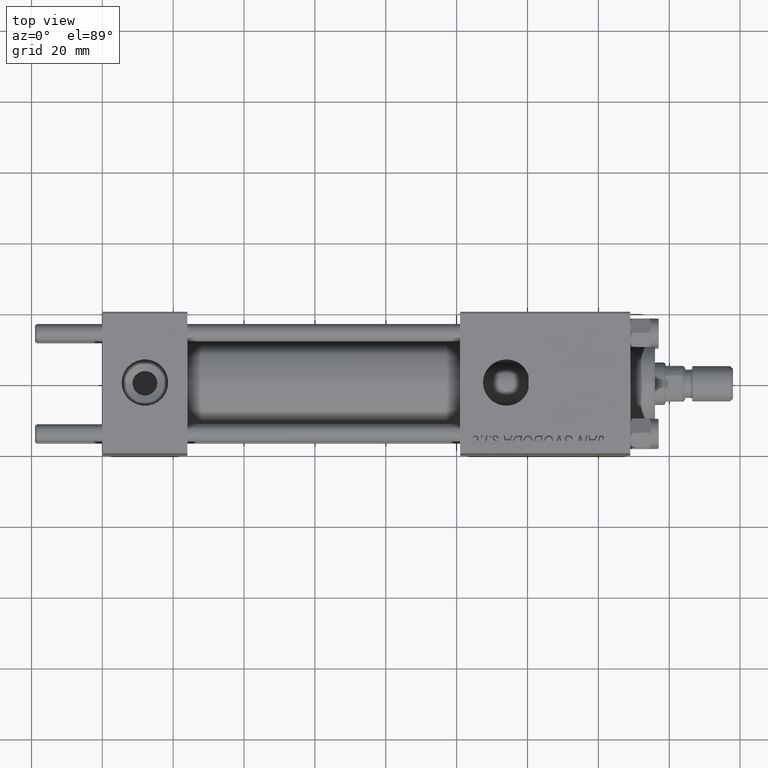
[diagram: clean part render]
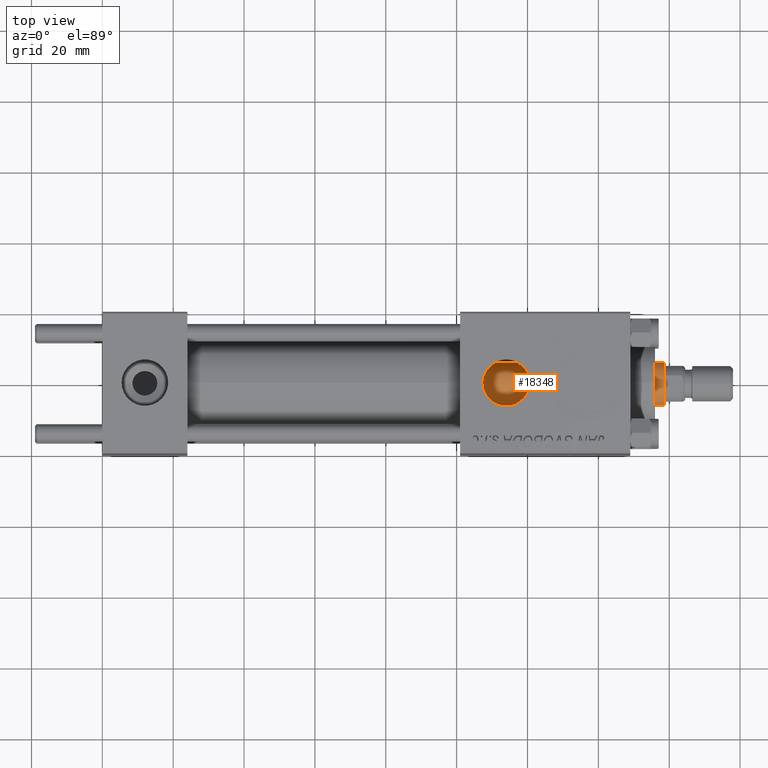
[diagram: same view with one face highlighted and labeled with its STEP entity id]
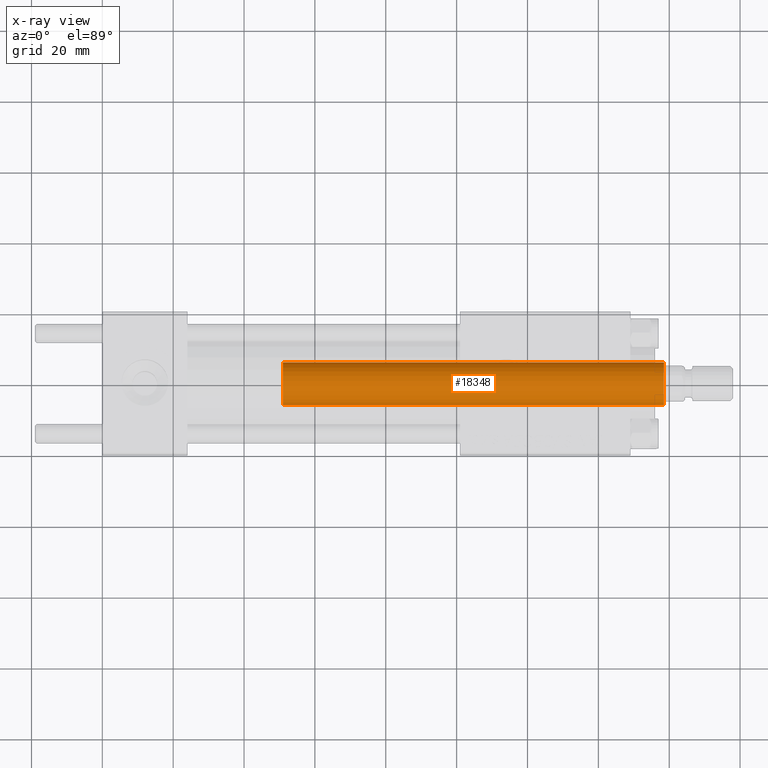
[diagram: x-ray of the same camera — body ghosted, the highlighted face saturated]
A machine part, top view. The second image highlights one B-rep face of the part: STEP entity #18348.
The next image is the same camera in x-ray: the body ghosted, the highlighted face saturated — about 0% of this face is hidden behind the body in this view.
In plain terms, the highlighted cylindrical surface (edge-blend (fillet) strip) has radius 6 mm, axis along (-1, 0, 0).
Its self-contained STEP definition (entity closure, byte-faithful):
#335 = DIRECTION ( 'NONE',  ( 1.000000000000000000, 0.000000000000000000, 0.000000000000000000 ) ) ;
#448 = CARTESIAN_POINT ( 'NONE',  ( 6.000000000000000888, 7.347880794884120722E-16, 134.4999999999999716 ) ) ;
#2637 = DIRECTION ( 'NONE',  ( 0.000000000000000000, 0.000000000000000000, 1.000000000000000000 ) ) ;
#4133 = CARTESIAN_POINT ( 'NONE',  ( -6.000000000000000888, 0.000000000000000000, 134.4999999999999716 ) ) ;
#4949 = CARTESIAN_POINT ( 'NONE',  ( -6.000000000000000888, 0.000000000000000000, 135.0000000000000000 ) ) ;
#5618 = AXIS2_PLACEMENT_3D ( 'NONE', #19389, #35507, #335 ) ;
#5619 = DIRECTION ( 'NONE',  ( -0.000000000000000000, -0.000000000000000000, -1.000000000000000000 ) ) ;
#7910 = CARTESIAN_POINT ( 'NONE',  ( 0.000000000000000000, 0.000000000000000000, 27.00000000000000000 ) ) ;
#7921 = EDGE_CURVE ( 'NONE', #35683, #8434, #29279, .T. ) ;
#8128 = EDGE_CURVE ( 'NONE', #21789, #35683, #45287, .T. ) ;
#8434 = VERTEX_POINT ( 'NONE', #17960 ) ;
#8654 = DIRECTION ( 'NONE',  ( -0.000000000000000000, -0.000000000000000000, -1.000000000000000000 ) ) ;
#9067 = ORIENTED_EDGE ( 'NONE', *, *, #22427, .T. ) ;
#10911 = ORIENTED_EDGE ( 'NONE', *, *, #18513, .F. ) ;
#13092 = CARTESIAN_POINT ( 'NONE',  ( 0.000000000000000000, 0.000000000000000000, 135.0000000000000000 ) ) ;
#13582 = CARTESIAN_POINT ( 'NONE',  ( 6.000000000000000888, 7.347880794884120722E-16, 27.00000000000000000 ) ) ;
#14186 = ORIENTED_EDGE ( 'NONE', *, *, #8128, .T. ) ;
#14264 = EDGE_LOOP ( 'NONE', ( #10911, #14186, #51375, #9067 ) ) ;
#17066 = FACE_OUTER_BOUND ( 'NONE', #14264, .T. ) ;
#17960 = CARTESIAN_POINT ( 'NONE',  ( -6.000000000000000888, 0.000000000000000000, 27.00000000000000000 ) ) ;
#18348 = ADVANCED_FACE ( 'NONE', ( #17066 ), #24992, .T. ) ;
#18483 = AXIS2_PLACEMENT_3D ( 'NONE', #13092, #33188, #49294 ) ;
#18513 = EDGE_CURVE ( 'NONE', #21789, #24351, #49497, .T. ) ;
#19389 = CARTESIAN_POINT ( 'NONE',  ( 0.000000000000000000, 0.000000000000000000, 134.4999999999999716 ) ) ;
#21789 = VERTEX_POINT ( 'NONE', #448 ) ;
#22022 = AXIS2_PLACEMENT_3D ( 'NONE', #7910, #2637, #23250 ) ;
#22427 = EDGE_CURVE ( 'NONE', #8434, #24351, #33842, .T. ) ;
#23250 = DIRECTION ( 'NONE',  ( 1.000000000000000000, 0.000000000000000000, 0.000000000000000000 ) ) ;
#24351 = VERTEX_POINT ( 'NONE', #13582 ) ;
#24992 = CYLINDRICAL_SURFACE ( 'NONE', #18483, 6.000000000000000888 ) ;
#29279 = LINE ( 'NONE', #4949, #37676 ) ;
#33188 = DIRECTION ( 'NONE',  ( -0.000000000000000000, -0.000000000000000000, -1.000000000000000000 ) ) ;
#33842 = CIRCLE ( 'NONE', #22022, 6.000000000000000888 ) ;
#35507 = DIRECTION ( 'NONE',  ( 0.000000000000000000, 0.000000000000000000, -1.000000000000000000 ) ) ;
#35683 = VERTEX_POINT ( 'NONE', #4133 ) ;
#37676 = VECTOR ( 'NONE', #8654, 1000.000000000000000 ) ;
#41829 = CARTESIAN_POINT ( 'NONE',  ( 6.000000000000000888, 7.347880794884120722E-16, 135.0000000000000000 ) ) ;
#45287 = CIRCLE ( 'NONE', #5618, 6.000000000000000888 ) ;
#49294 = DIRECTION ( 'NONE',  ( -1.000000000000000000, 0.000000000000000000, 0.000000000000000000 ) ) ;
#49497 = LINE ( 'NONE', #41829, #50564 ) ;
#50564 = VECTOR ( 'NONE', #5619, 1000.000000000000000 ) ;
#51375 = ORIENTED_EDGE ( 'NONE', *, *, #7921, .T. ) ;